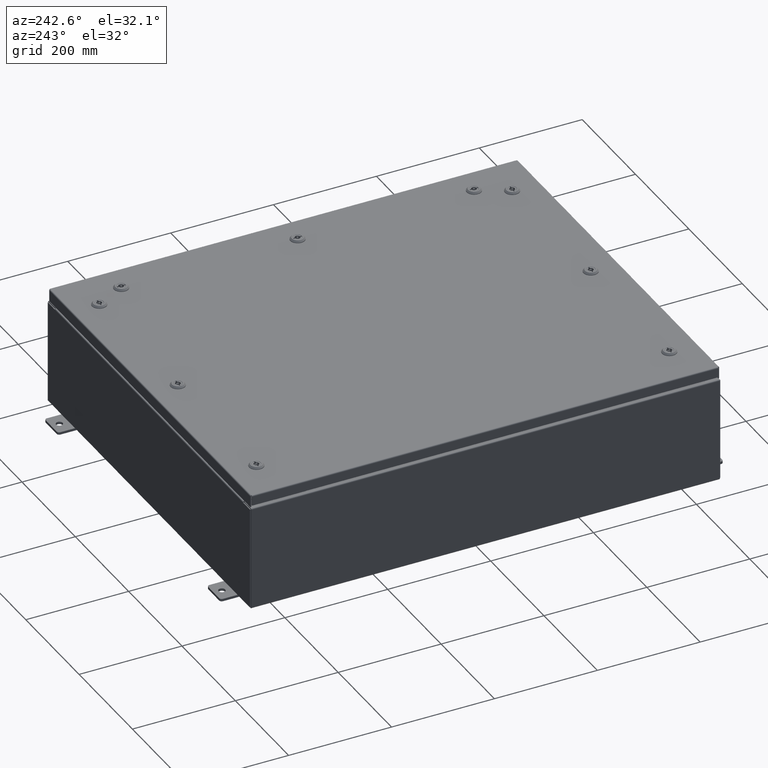
[diagram: clean part render]
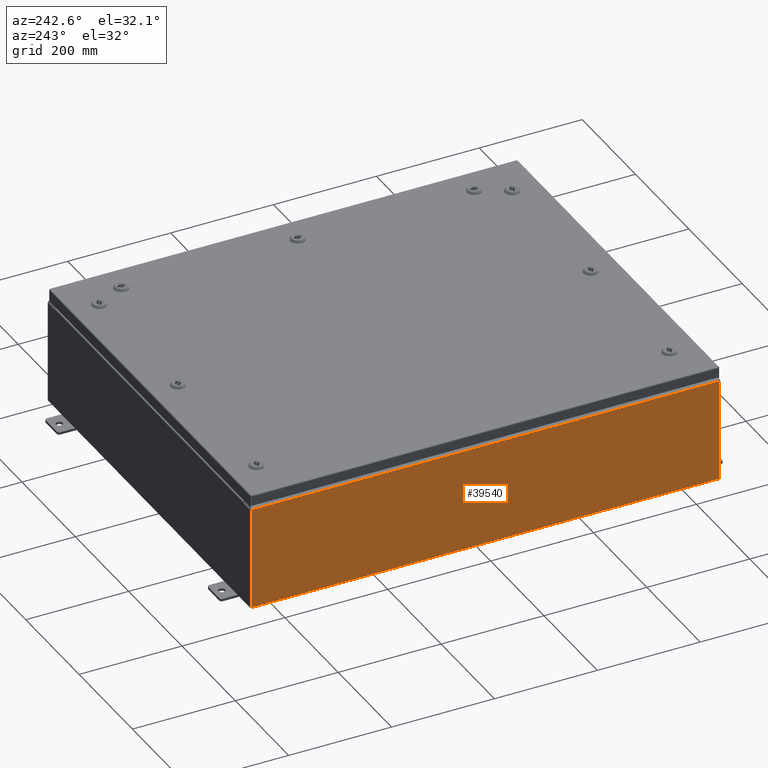
[diagram: same view with one face highlighted and labeled with its STEP entity id]
A machine part, auxiliary view. The second image highlights one B-rep face of the part: STEP entity #39540.
In plain terms, the highlighted planar face has unit normal (1, 0, 0).
Its self-contained STEP definition (entity closure, byte-faithful):
#913 = EDGE_CURVE ( 'NONE', #17307, #24967, #13922, .T. ) ;
#1860 = CARTESIAN_POINT ( 'NONE',  ( -15.00000000000003200, -17.92530000000000000, 7.837599999999999200 ) ) ;
#4347 = DIRECTION ( 'NONE',  ( 1.000000000000000000, 0.0000000000000000000, 3.584876173029202900E-015 ) ) ;
#8516 = CARTESIAN_POINT ( 'NONE',  ( -15.00000000000000400, -17.92530000000000000, -5.403395625144963300E-014 ) ) ;
#13669 = DIRECTION ( 'NONE',  ( -3.584876173029202900E-015, 0.0000000000000000000, 1.000000000000000000 ) ) ;
#13922 = LINE ( 'NONE', #49488, #52921 ) ;
#17307 = VERTEX_POINT ( 'NONE', #1860 ) ;
#19473 = CARTESIAN_POINT ( 'NONE',  ( -15.00000000000000400, 0.0000000000000000000, -5.403395625144963300E-014 ) ) ;
#20690 = VECTOR ( 'NONE', #20875, 39.37007874015748100 ) ;
#20736 = EDGE_CURVE ( 'NONE', #24967, #56925, #46341, .T. ) ;
#20875 = DIRECTION ( 'NONE',  ( -0.0000000000000000000, 1.000000000000000000, -0.0000000000000000000 ) ) ;
#21556 = CARTESIAN_POINT ( 'NONE',  ( -15.00000000000000400, -17.92530000000000000, 0.01299999999999984700 ) ) ;
#22143 = ORIENTED_EDGE ( 'NONE', *, *, #20736, .T. ) ;
#24967 = VERTEX_POINT ( 'NONE', #37564 ) ;
#30496 = EDGE_CURVE ( 'NONE', #57173, #56925, #35796, .T. ) ;
#34769 = PLANE ( 'NONE',  #41940 ) ;
#35796 = LINE ( 'NONE', #61611, #20690 ) ;
#37564 = CARTESIAN_POINT ( 'NONE',  ( -15.00000000000003200, 17.92530000000000000, 7.837599999999999200 ) ) ;
#38102 = DIRECTION ( 'NONE',  ( 3.584876173029202900E-015, 0.0000000000000000000, -1.000000000000000000 ) ) ;
#38978 = ORIENTED_EDGE ( 'NONE', *, *, #44480, .T. ) ;
#39540 = ADVANCED_FACE ( 'NONE', ( #64719 ), #34769, .F. ) ;
#39916 = DIRECTION ( 'NONE',  ( 3.584876173029202900E-015, 0.0000000000000000000, -1.000000000000000000 ) ) ;
#41940 = AXIS2_PLACEMENT_3D ( 'NONE', #19473, #4347, #39916 ) ;
#43278 = CARTESIAN_POINT ( 'NONE',  ( -15.00000000000000400, 17.92530000000000000, -5.403395625144963300E-014 ) ) ;
#44480 = EDGE_CURVE ( 'NONE', #57173, #17307, #61985, .T. ) ;
#46341 = LINE ( 'NONE', #43278, #56690 ) ;
#47012 = ORIENTED_EDGE ( 'NONE', *, *, #30496, .F. ) ;
#49488 = CARTESIAN_POINT ( 'NONE',  ( -15.00000000000003200, -17.92530000000000000, 7.837599999999999200 ) ) ;
#51333 = DIRECTION ( 'NONE',  ( 0.0000000000000000000, 1.000000000000000000, 0.0000000000000000000 ) ) ;
#52921 = VECTOR ( 'NONE', #51333, 39.37007874015748100 ) ;
#54899 = ORIENTED_EDGE ( 'NONE', *, *, #913, .T. ) ;
#56106 = CARTESIAN_POINT ( 'NONE',  ( -15.00000000000000400, 17.92530000000000000, 0.01299999999999983600 ) ) ;
#56690 = VECTOR ( 'NONE', #38102, 39.37007874015748100 ) ;
#56925 = VERTEX_POINT ( 'NONE', #56106 ) ;
#57173 = VERTEX_POINT ( 'NONE', #21556 ) ;
#60400 = VECTOR ( 'NONE', #13669, 39.37007874015748100 ) ;
#60402 = EDGE_LOOP ( 'NONE', ( #54899, #22143, #47012, #38978 ) ) ;
#61611 = CARTESIAN_POINT ( 'NONE',  ( -15.00000000000000400, 17.92530000000000000, 0.01299999999999984700 ) ) ;
#61985 = LINE ( 'NONE', #8516, #60400 ) ;
#64719 = FACE_OUTER_BOUND ( 'NONE', #60402, .T. ) ;